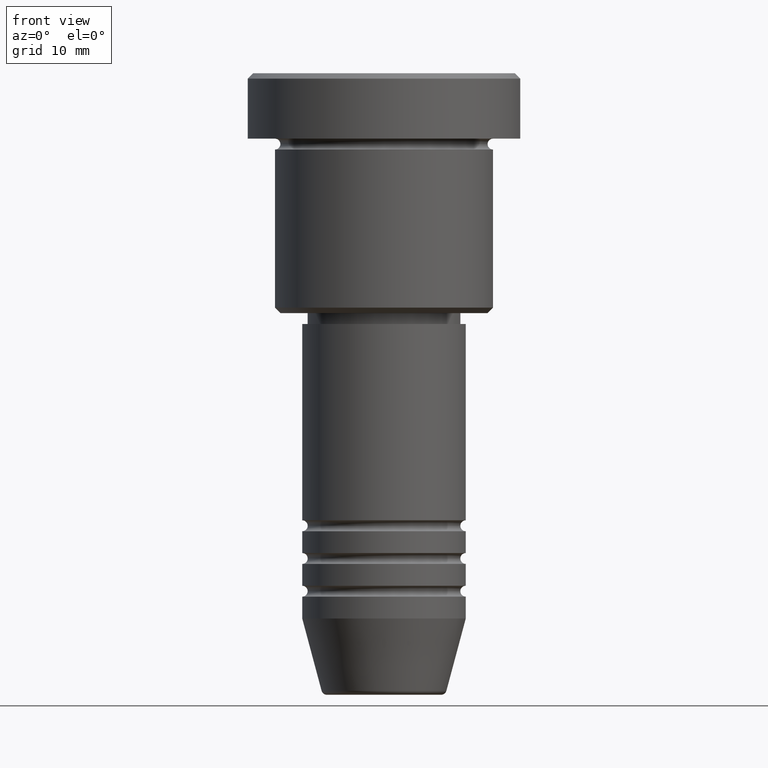
[diagram: clean part render]
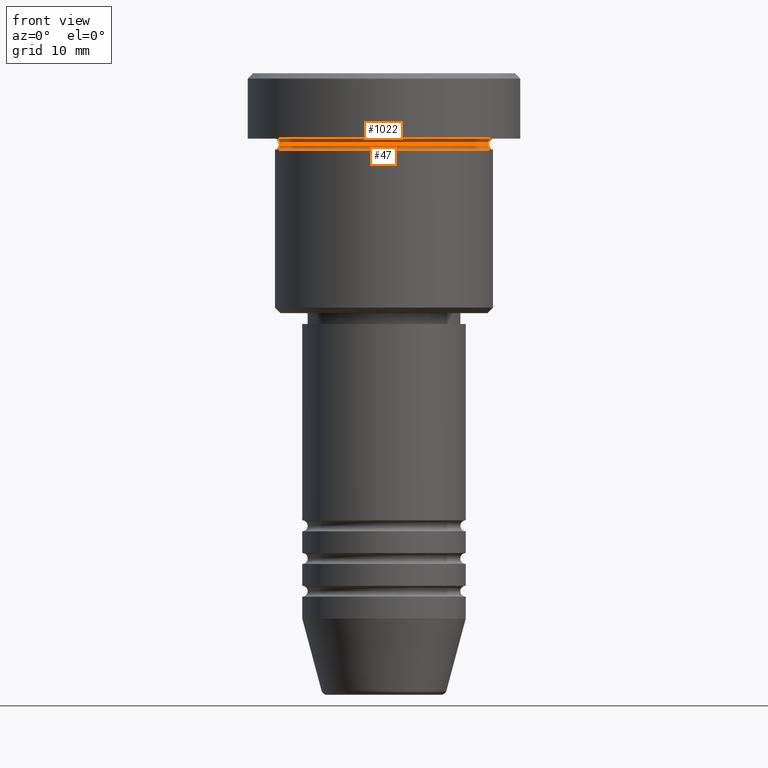
[diagram: same view with one multi-face feature highlighted, each face labeled with its STEP entity id]
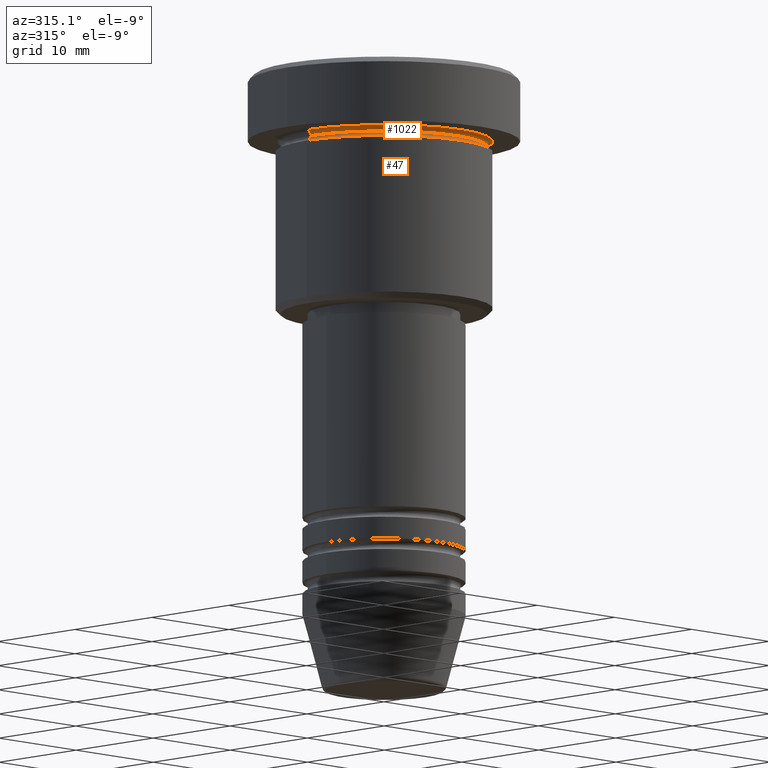
[diagram: same view with one multi-face feature highlighted, each face labeled with its STEP entity id]
A machine part, front view. The highlighted faces form ONE feature: a constant-radius fillet chain: 2 tangent blend faces with common blend radius 0.5 mm. The faces share edges in the B-rep.
A second angle (auxiliary view) of the same feature is appended — it is thin or edge-on in the first view.
Their STEP definitions:
[1] entity #47 (Torus):
#23 = CARTESIAN_POINT ( 'NONE',  ( 10.00000000000000000, 0.000000000000000000, -6.999999999999996447 ) ) ;
#47 = ADVANCED_FACE ( 'NONE', ( #451 ), #484, .F. ) ;
#76 = DIRECTION ( 'NONE',  ( 0.000000000000000000, -1.000000000000000000, 0.000000000000000000 ) ) ;
#105 = AXIS2_PLACEMENT_3D ( 'NONE', #984, #899, #1007 ) ;
#147 = EDGE_LOOP ( 'NONE', ( #613, #222, #398, #1166 ) ) ;
#177 = DIRECTION ( 'NONE',  ( 1.000000000000000000, 0.000000000000000000, 0.000000000000000000 ) ) ;
#222 = ORIENTED_EDGE ( 'NONE', *, *, #317, .T. ) ;
#228 = VERTEX_POINT ( 'NONE', #1106 ) ;
#266 = DIRECTION ( 'NONE',  ( -0.000000000000000000, -0.000000000000000000, 1.000000000000000000 ) ) ;
#289 = DIRECTION ( 'NONE',  ( -0.000000000000000000, -0.000000000000000000, 1.000000000000000000 ) ) ;
#293 = EDGE_CURVE ( 'NONE', #228, #975, #368, .T. ) ;
#317 = EDGE_CURVE ( 'NONE', #493, #228, #1107, .T. ) ;
#368 = CIRCLE ( 'NONE', #620, 10.00000000000000000 ) ;
#398 = ORIENTED_EDGE ( 'NONE', *, *, #293, .T. ) ;
#443 = DIRECTION ( 'NONE',  ( 0.000000000000000000, 0.000000000000000000, -1.000000000000000000 ) ) ;
#451 = FACE_OUTER_BOUND ( 'NONE', #147, .T. ) ;
#484 = TOROIDAL_SURFACE ( 'NONE', #758, 10.00000000000000000, 0.5000000000000000000 ) ;
#486 = DIRECTION ( 'NONE',  ( 1.000000000000000000, 0.000000000000000000, 0.000000000000000000 ) ) ;
#493 = VERTEX_POINT ( 'NONE', #1092 ) ;
#579 = DIRECTION ( 'NONE',  ( -0.000000000000000000, -0.000000000000000000, 1.000000000000000000 ) ) ;
#601 = CIRCLE ( 'NONE', #1134, 0.5000000000000004441 ) ;
#607 = EDGE_CURVE ( 'NONE', #493, #945, #643, .T. ) ;
#613 = ORIENTED_EDGE ( 'NONE', *, *, #607, .F. ) ;
#620 = AXIS2_PLACEMENT_3D ( 'NONE', #1038, #579, #486 ) ;
#636 = DIRECTION ( 'NONE',  ( 1.000000000000000000, 0.000000000000000000, 0.000000000000000000 ) ) ;
#643 = CIRCLE ( 'NONE', #711, 9.500000000000000000 ) ;
#666 = EDGE_CURVE ( 'NONE', #945, #975, #601, .T. ) ;
#699 = CARTESIAN_POINT ( 'NONE',  ( 0.000000000000000000, 0.000000000000000000, -6.499999999999997335 ) ) ;
#711 = AXIS2_PLACEMENT_3D ( 'NONE', #1005, #289, #177 ) ;
#758 = AXIS2_PLACEMENT_3D ( 'NONE', #699, #266, #636 ) ;
#899 = DIRECTION ( 'NONE',  ( 1.224646799147353207E-16, 1.000000000000000000, 0.000000000000000000 ) ) ;
#945 = VERTEX_POINT ( 'NONE', #1131 ) ;
#975 = VERTEX_POINT ( 'NONE', #23 ) ;
#984 = CARTESIAN_POINT ( 'NONE',  ( -10.00000000000000000, 1.224646799147353256E-15, -6.499999999999997335 ) ) ;
#1005 = CARTESIAN_POINT ( 'NONE',  ( 0.000000000000000000, 0.000000000000000000, -6.499999999999997335 ) ) ;
#1007 = DIRECTION ( 'NONE',  ( -1.000000000000000000, 1.224646799147353454E-16, 0.000000000000000000 ) ) ;
#1015 = CARTESIAN_POINT ( 'NONE',  ( 10.00000000000000000, 0.000000000000000000, -6.499999999999997335 ) ) ;
#1038 = CARTESIAN_POINT ( 'NONE',  ( 0.000000000000000000, 0.000000000000000000, -6.999999999999996447 ) ) ;
#1092 = CARTESIAN_POINT ( 'NONE',  ( -9.500000000000000000, 1.194030629168669469E-15, -6.499999999999997335 ) ) ;
#1106 = CARTESIAN_POINT ( 'NONE',  ( -10.00000000000000000, 1.224646799147353256E-15, -6.999999999999996447 ) ) ;
#1107 = CIRCLE ( 'NONE', #105, 0.5000000000000004441 ) ;
#1131 = CARTESIAN_POINT ( 'NONE',  ( 9.500000000000000000, 0.000000000000000000, -6.499999999999997335 ) ) ;
#1134 = AXIS2_PLACEMENT_3D ( 'NONE', #1015, #76, #443 ) ;
#1166 = ORIENTED_EDGE ( 'NONE', *, *, #666, .F. ) ;
[2] entity #1022 (Torus):
#88 = DIRECTION ( 'NONE',  ( -0.000000000000000000, -1.000000000000000000, -0.000000000000000000 ) ) ;
#99 = EDGE_CURVE ( 'NONE', #945, #688, #794, .T. ) ;
#162 = ORIENTED_EDGE ( 'NONE', *, *, #607, .T. ) ;
#177 = DIRECTION ( 'NONE',  ( 1.000000000000000000, 0.000000000000000000, 0.000000000000000000 ) ) ;
#192 = CARTESIAN_POINT ( 'NONE',  ( 10.00000000000000000, 1.224646799147353256E-15, -5.999999999999996447 ) ) ;
#220 = AXIS2_PLACEMENT_3D ( 'NONE', #537, #562, #1019 ) ;
#226 = CARTESIAN_POINT ( 'NONE',  ( -10.00000000000000000, 0.000000000000000000, -5.999999999999996447 ) ) ;
#289 = DIRECTION ( 'NONE',  ( -0.000000000000000000, -0.000000000000000000, 1.000000000000000000 ) ) ;
#302 = ORIENTED_EDGE ( 'NONE', *, *, #961, .F. ) ;
#320 = DIRECTION ( 'NONE',  ( -0.000000000000000000, -0.000000000000000000, 1.000000000000000000 ) ) ;
#344 = DIRECTION ( 'NONE',  ( -1.000000000000000000, -1.224646799147353454E-16, 0.000000000000000000 ) ) ;
#361 = ORIENTED_EDGE ( 'NONE', *, *, #619, .F. ) ;
#375 = CARTESIAN_POINT ( 'NONE',  ( -10.00000000000000000, 0.000000000000000000, -6.499999999999997335 ) ) ;
#406 = AXIS2_PLACEMENT_3D ( 'NONE', #375, #88, #470 ) ;
#466 = AXIS2_PLACEMENT_3D ( 'NONE', #621, #903, #344 ) ;
#470 = DIRECTION ( 'NONE',  ( 0.000000000000000000, 0.000000000000000000, -1.000000000000000000 ) ) ;
#493 = VERTEX_POINT ( 'NONE', #1092 ) ;
#513 = ORIENTED_EDGE ( 'NONE', *, *, #99, .T. ) ;
#537 = CARTESIAN_POINT ( 'NONE',  ( 0.000000000000000000, 0.000000000000000000, -6.499999999999997335 ) ) ;
#562 = DIRECTION ( 'NONE',  ( 0.000000000000000000, 0.000000000000000000, -1.000000000000000000 ) ) ;
#602 = CARTESIAN_POINT ( 'NONE',  ( 0.000000000000000000, 0.000000000000000000, -5.999999999999996447 ) ) ;
#607 = EDGE_CURVE ( 'NONE', #493, #945, #643, .T. ) ;
#619 = EDGE_CURVE ( 'NONE', #493, #855, #839, .T. ) ;
#621 = CARTESIAN_POINT ( 'NONE',  ( 10.00000000000000000, 1.224646799147353256E-15, -6.499999999999997335 ) ) ;
#623 = AXIS2_PLACEMENT_3D ( 'NONE', #602, #320, #1125 ) ;
#643 = CIRCLE ( 'NONE', #711, 9.500000000000000000 ) ;
#659 = CIRCLE ( 'NONE', #623, 10.00000000000000000 ) ;
#688 = VERTEX_POINT ( 'NONE', #192 ) ;
#711 = AXIS2_PLACEMENT_3D ( 'NONE', #1005, #289, #177 ) ;
#712 = TOROIDAL_SURFACE ( 'NONE', #220, 10.00000000000000000, 0.5000000000000000000 ) ;
#794 = CIRCLE ( 'NONE', #466, 0.5000000000000004441 ) ;
#839 = CIRCLE ( 'NONE', #406, 0.5000000000000004441 ) ;
#855 = VERTEX_POINT ( 'NONE', #226 ) ;
#903 = DIRECTION ( 'NONE',  ( -1.224646799147353207E-16, 1.000000000000000000, 0.000000000000000000 ) ) ;
#909 = EDGE_LOOP ( 'NONE', ( #162, #513, #302, #361 ) ) ;
#945 = VERTEX_POINT ( 'NONE', #1131 ) ;
#961 = EDGE_CURVE ( 'NONE', #855, #688, #659, .T. ) ;
#1005 = CARTESIAN_POINT ( 'NONE',  ( 0.000000000000000000, 0.000000000000000000, -6.499999999999997335 ) ) ;
#1019 = DIRECTION ( 'NONE',  ( -1.000000000000000000, 0.000000000000000000, 0.000000000000000000 ) ) ;
#1022 = ADVANCED_FACE ( 'NONE', ( #1162 ), #712, .F. ) ;
#1092 = CARTESIAN_POINT ( 'NONE',  ( -9.500000000000000000, 1.194030629168669469E-15, -6.499999999999997335 ) ) ;
#1125 = DIRECTION ( 'NONE',  ( -1.000000000000000000, 0.000000000000000000, 0.000000000000000000 ) ) ;
#1131 = CARTESIAN_POINT ( 'NONE',  ( 9.500000000000000000, 0.000000000000000000, -6.499999999999997335 ) ) ;
#1162 = FACE_OUTER_BOUND ( 'NONE', #909, .T. ) ;